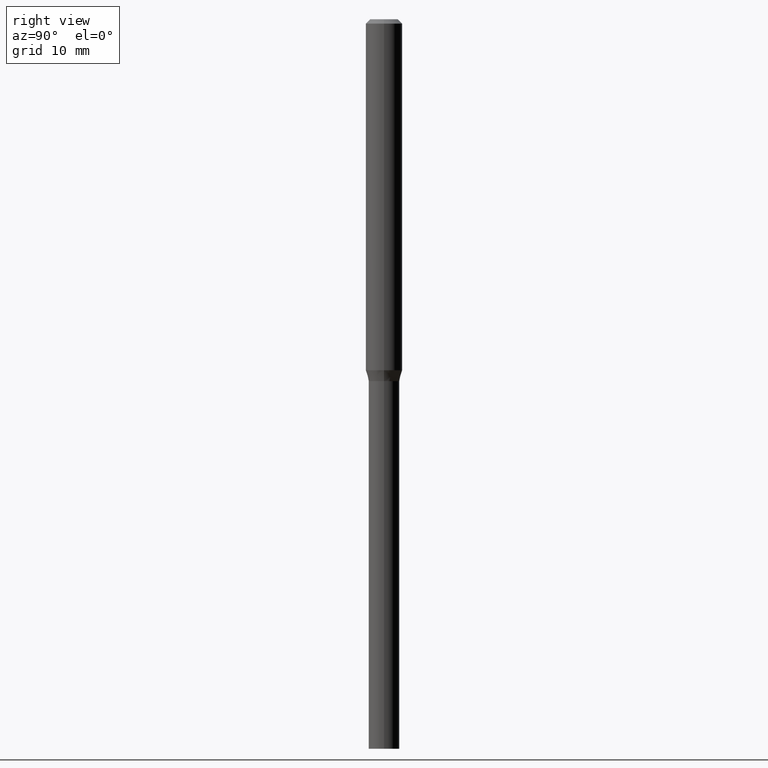
[diagram: clean part render]
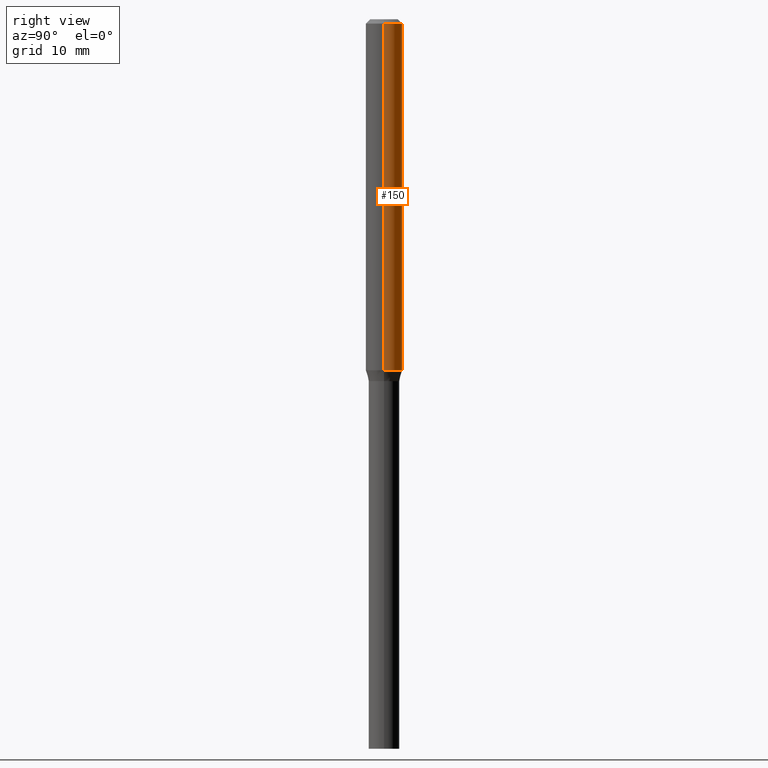
[diagram: same view with one face highlighted and labeled with its STEP entity id]
A machine part, right view. The second image highlights one B-rep face of the part: STEP entity #150.
In plain terms, the highlighted cylindrical surface (edge-blend (fillet) strip) has radius 1.5875 mm, axis along (-0, 0, 1).
Its self-contained STEP definition (entity closure, byte-faithful):
#17 = VECTOR ( 'NONE', #380, 39.37007874015748143 ) ;
#25 = AXIS2_PLACEMENT_3D ( 'NONE', #204, #175, #349 ) ;
#35 = EDGE_CURVE ( 'NONE', #196, #124, #57, .T. ) ;
#47 = CARTESIAN_POINT ( 'NONE',  ( 2.941115181339488673E-29, -4.199133002663083493E-15, -1.202679491924309785 ) ) ;
#55 = DIRECTION ( 'NONE',  ( -2.445468806185136597E-29, 3.491481338843145583E-15, 1.000000000000000000 ) ) ;
#57 = LINE ( 'NONE', #201, #17 ) ;
#63 = LINE ( 'NONE', #427, #303 ) ;
#93 = EDGE_CURVE ( 'NONE', #158, #124, #463, .T. ) ;
#102 = CARTESIAN_POINT ( 'NONE',  ( 0.000000000000000000, 0.000000000000000000, 0.000000000000000000 ) ) ;
#124 = VERTEX_POINT ( 'NONE', #248 ) ;
#125 = ORIENTED_EDGE ( 'NONE', *, *, #231, .T. ) ;
#146 = DIRECTION ( 'NONE',  ( -2.445468806185136877E-29, 3.491481338843145188E-15, 1.000000000000000000 ) ) ;
#150 = ADVANCED_FACE ( 'NONE', ( #250 ), #282, .T. ) ;
#158 = VERTEX_POINT ( 'NONE', #419 ) ;
#163 = DIRECTION ( 'NONE',  ( 1.000000000000000000, -6.982962677686270655E-15, 0.000000000000000000 ) ) ;
#175 = DIRECTION ( 'NONE',  ( -2.445468806185136597E-29, 3.491481338843145583E-15, 1.000000000000000000 ) ) ;
#177 = DIRECTION ( 'NONE',  ( 1.000000000000000000, -6.982962677686266711E-15, 4.876176775795935793E-29 ) ) ;
#196 = VERTEX_POINT ( 'NONE', #217 ) ;
#201 = CARTESIAN_POINT ( 'NONE',  ( -0.06250000000000000000, 4.440892098500626162E-16, -3.074334431409316114E-30 ) ) ;
#204 = CARTESIAN_POINT ( 'NONE',  ( 3.668203209277705088E-31, -5.237222008264718399E-17, -0.01499999999999999944 ) ) ;
#217 = CARTESIAN_POINT ( 'NONE',  ( -0.06250000000000000000, -3.755043792813020877E-15, -1.202679491924309785 ) ) ;
#231 = EDGE_CURVE ( 'NONE', #448, #196, #438, .T. ) ;
#248 = CARTESIAN_POINT ( 'NONE',  ( -0.06250000000000000000, -1.681663401522802867E-15, -0.01499999999999999944 ) ) ;
#250 = FACE_OUTER_BOUND ( 'NONE', #304, .T. ) ;
#258 = AXIS2_PLACEMENT_3D ( 'NONE', #47, #55, #163 ) ;
#262 = ORIENTED_EDGE ( 'NONE', *, *, #461, .F. ) ;
#282 = CYLINDRICAL_SURFACE ( 'NONE', #337, 0.06250000000000000000 ) ;
#303 = VECTOR ( 'NONE', #146, 39.37007874015748143 ) ;
#304 = EDGE_LOOP ( 'NONE', ( #125, #394, #364, #262 ) ) ;
#337 = AXIS2_PLACEMENT_3D ( 'NONE', #102, #426, #177 ) ;
#349 = DIRECTION ( 'NONE',  ( 1.000000000000000000, -6.982962677686266711E-15, 0.000000000000000000 ) ) ;
#364 = ORIENTED_EDGE ( 'NONE', *, *, #93, .F. ) ;
#380 = DIRECTION ( 'NONE',  ( -2.445468806185136877E-29, 3.491481338843145188E-15, 1.000000000000000000 ) ) ;
#383 = CARTESIAN_POINT ( 'NONE',  ( 0.06250000000000000000, -4.635568170018474374E-15, -1.202679491924309785 ) ) ;
#394 = ORIENTED_EDGE ( 'NONE', *, *, #35, .T. ) ;
#419 = CARTESIAN_POINT ( 'NONE',  ( 0.06250000000000000000, -4.888073874380388472E-16, -0.01499999999999999944 ) ) ;
#426 = DIRECTION ( 'NONE',  ( -2.445468806185136597E-29, 3.491481338843145583E-15, 1.000000000000000000 ) ) ;
#427 = CARTESIAN_POINT ( 'NONE',  ( 0.06250000000000000000, -4.364351673553916694E-16, 3.047610484872459871E-30 ) ) ;
#438 = CIRCLE ( 'NONE', #258, 0.06250000000000000000 ) ;
#448 = VERTEX_POINT ( 'NONE', #383 ) ;
#461 = EDGE_CURVE ( 'NONE', #448, #158, #63, .T. ) ;
#463 = CIRCLE ( 'NONE', #25, 0.06250000000000000000 ) ;